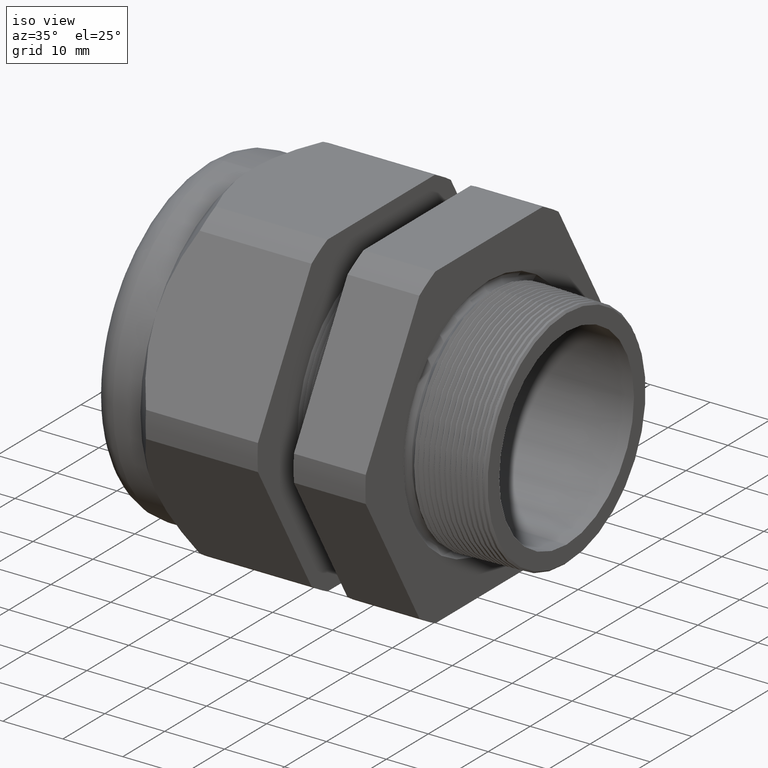
[diagram: clean part render]
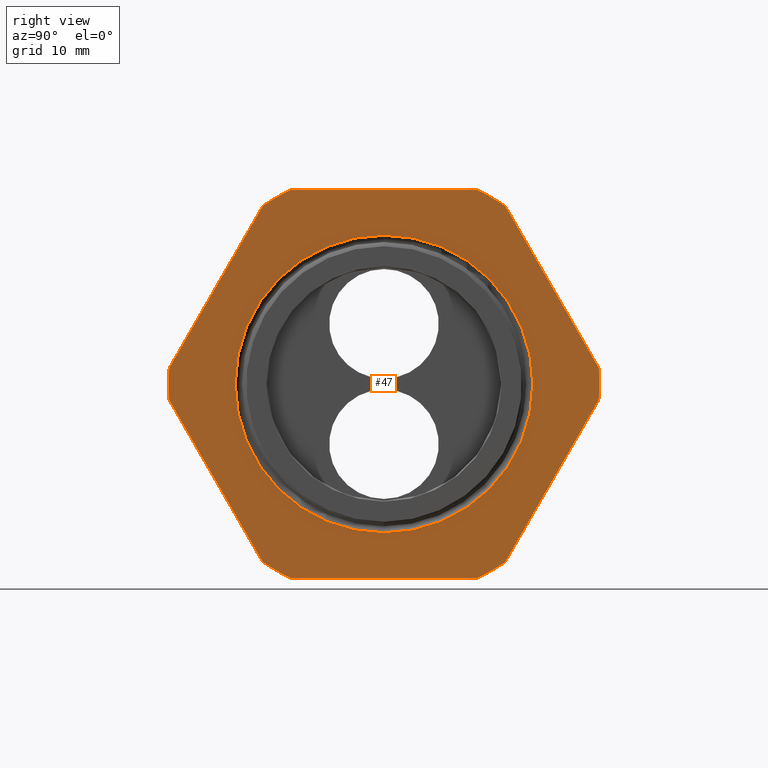
[diagram: tour spotlight — one face highlighted and labeled with its STEP entity id]
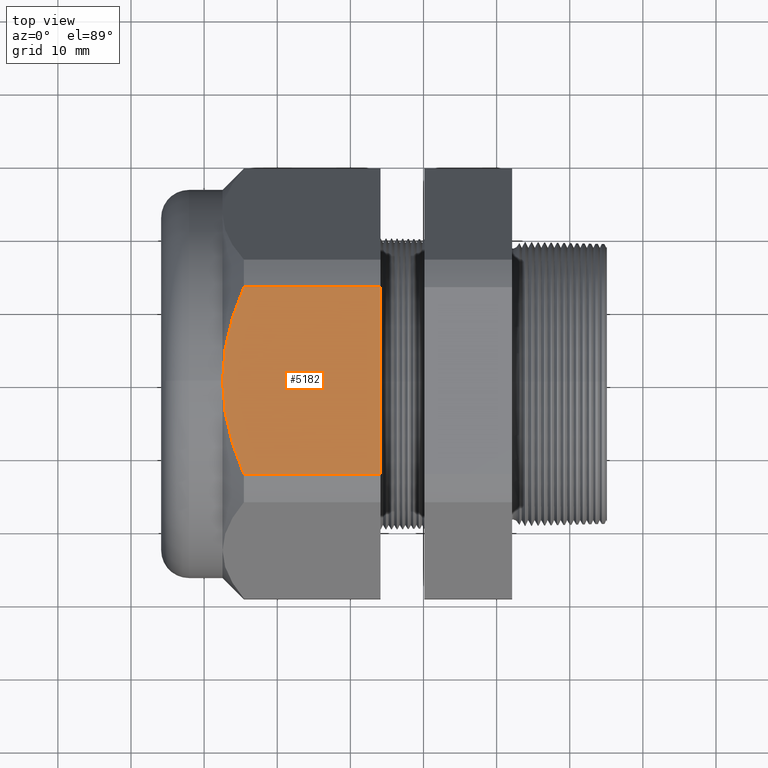
[diagram: tour spotlight — one face highlighted and labeled with its STEP entity id]
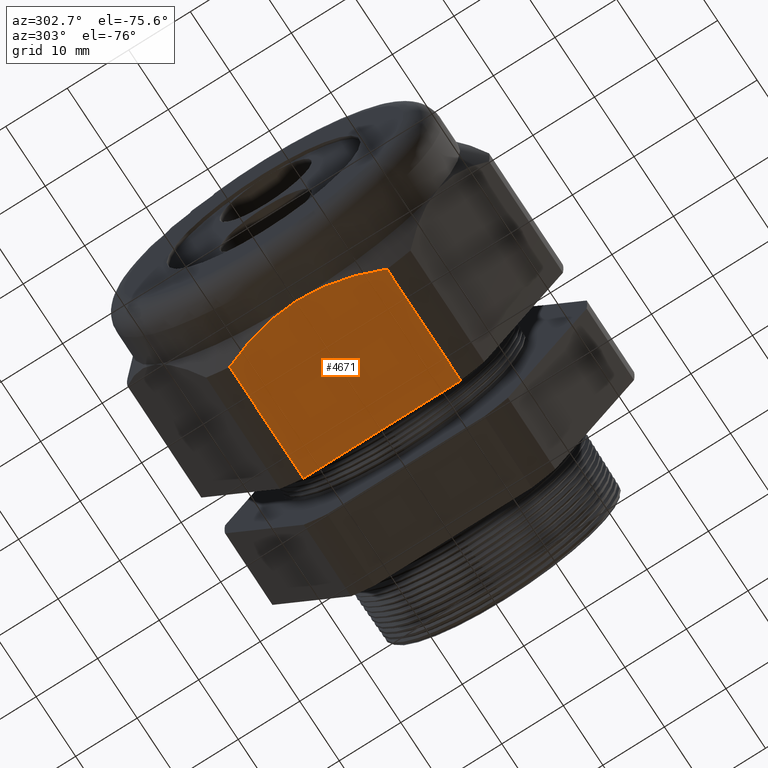
[diagram: tour spotlight — one face highlighted and labeled with its STEP entity id]
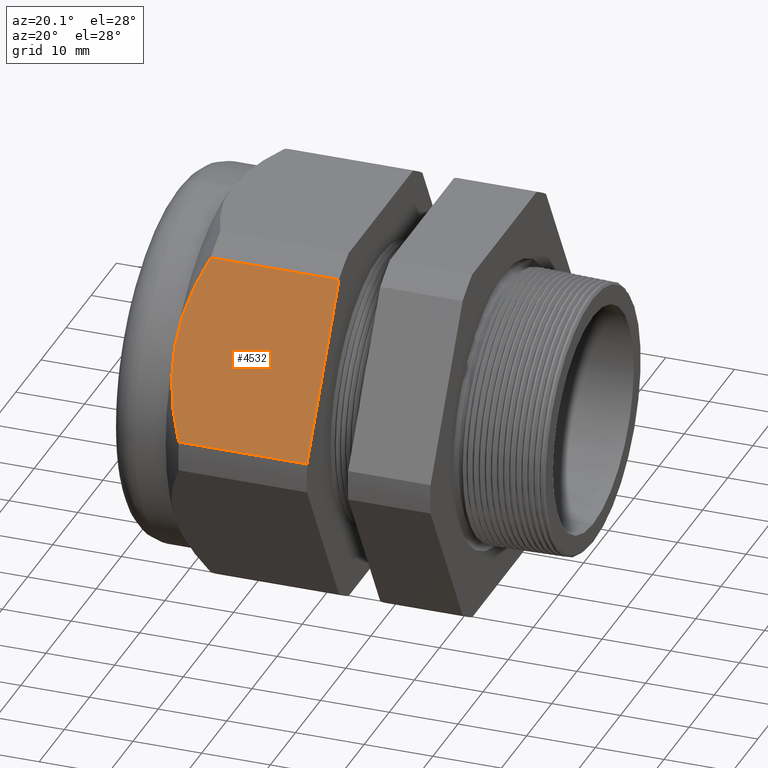
[diagram: tour spotlight — one face highlighted and labeled with its STEP entity id]
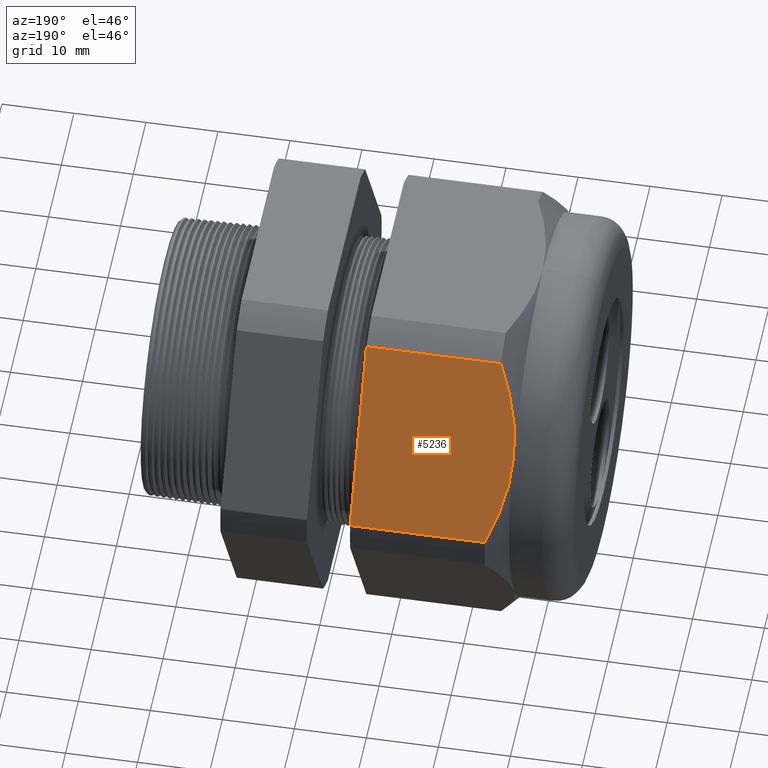
[diagram: tour spotlight — one face highlighted and labeled with its STEP entity id]
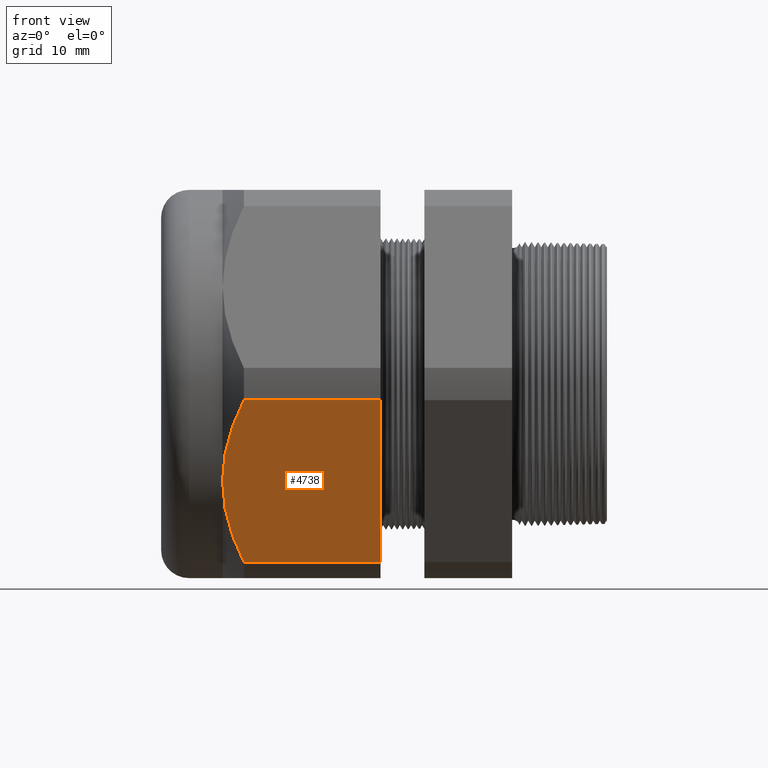
[diagram: tour spotlight — one face highlighted and labeled with its STEP entity id]
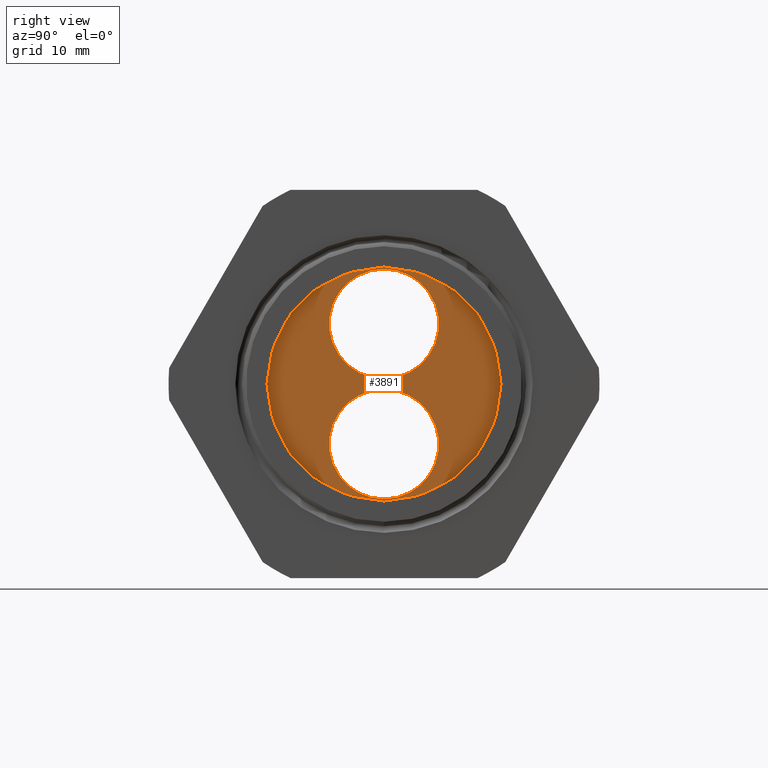
[diagram: tour spotlight — one face highlighted and labeled with its STEP entity id]
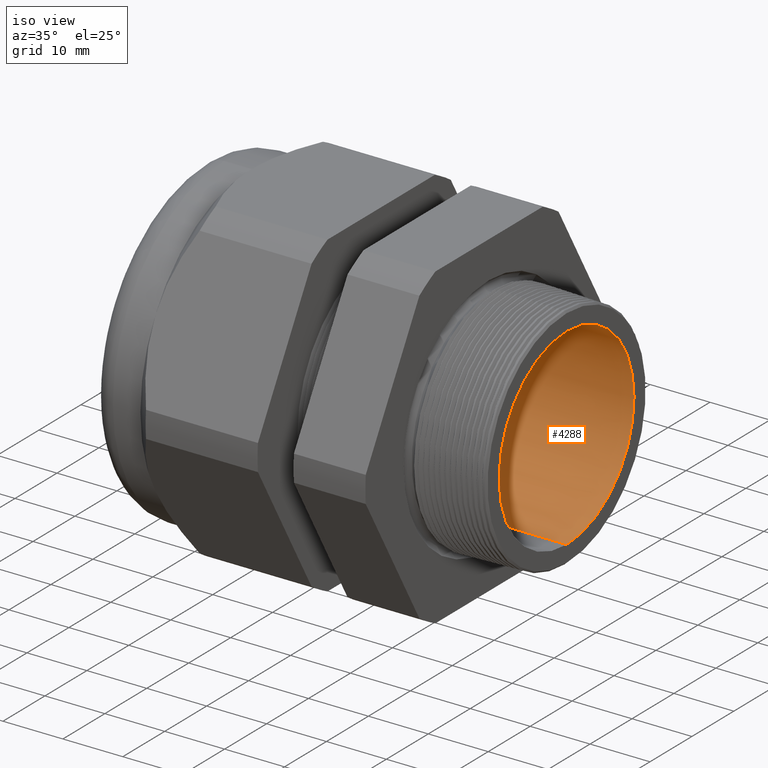
[diagram: tour spotlight — one face highlighted and labeled with its STEP entity id]
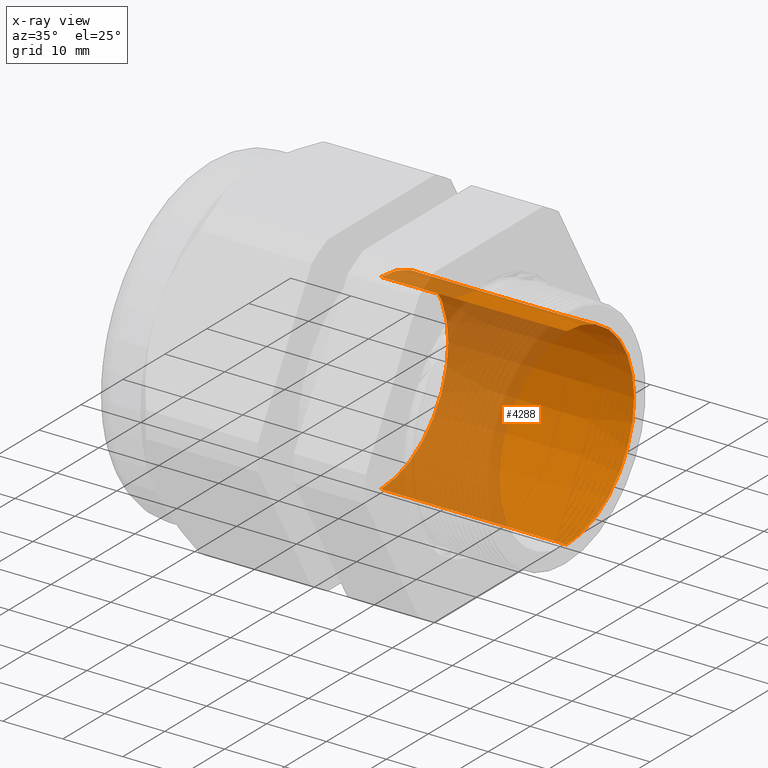
[diagram: x-ray of the same camera — body ghosted, this tour face saturated]
A machine part: a face-by-face anatomy tour. The part has 193 B-rep faces; the first image is the clean iso view, then the 8 largest visible faces are spotlighted one at a time (largest first), each with its STEP entity span.

Face 1 — right view, entity #47. In plain terms, the highlighted planar face has unit normal (1, 0, 0).
Definition (entity closure, byte-faithful):
#9 = ORIENTED_EDGE ( 'NONE', *, *, #12, .T. ) ;
#10 = VERTEX_POINT ( 'NONE', #316 ) ;
#12 = EDGE_CURVE ( 'NONE', #13, #10, #311, .T. ) ;
#13 = VERTEX_POINT ( 'NONE', #307 ) ;
#14 = EDGE_LOOP ( 'NONE', ( #9, #4822, #4802, #4793, #4881, #64, #4846, #4843, #4835, #4836, #4806, #3882 ) ) ;
#28 = ORIENTED_EDGE ( 'NONE', *, *, #4336, .F. ) ;
#36 = ORIENTED_EDGE ( 'NONE', *, *, #38, .F. ) ;
#38 = EDGE_CURVE ( 'NONE', #4329, #4334, #394, .T. ) ;
#43 = EDGE_LOOP ( 'NONE', ( #36, #28 ) ) ;
#47 = ADVANCED_FACE ( 'NONE', ( #387, #381 ), #380, .T. ) ;
#62 = VERTEX_POINT ( 'NONE', #407 ) ;
#64 = ORIENTED_EDGE ( 'NONE', *, *, #66, .T. ) ;
#66 = EDGE_CURVE ( 'NONE', #4882, #62, #399, .T. ) ;
#307 = CARTESIAN_POINT ( 'NONE',  ( -0.3100000000000000000, 0.6532729870224188700, -0.9584979952648864400 ) ) ;
#308 = DIRECTION ( 'NONE',  ( 0.0000000000000000000, 0.4999999999999998300, 0.8660254037844386000 ) ) ;
#309 = VECTOR ( 'NONE', #308, 39.37007874015748900 ) ;
#310 = CARTESIAN_POINT ( 'NONE',  ( -0.3100000000000000000, 1.427496546954737800, 0.3824965469547383900 ) ) ;
#311 = LINE ( 'NONE', #310, #309 ) ;
#316 = CARTESIAN_POINT ( 'NONE',  ( -0.3100000000000000000, 1.156720106887057600, -0.08650200473511303300 ) ) ;
#376 = DIRECTION ( 'NONE',  ( 0.0000000000000000000, 0.0000000000000000000, -1.000000000000000000 ) ) ;
#377 = DIRECTION ( 'NONE',  ( 1.000000000000000000, 0.0000000000000000000, 0.0000000000000000000 ) ) ;
#378 = CARTESIAN_POINT ( 'NONE',  ( -0.3100000000000000000, 2.089999999999999900, 0.0000000000000000000 ) ) ;
#379 = AXIS2_PLACEMENT_3D ( 'NONE', #378, #377, #376 ) ;
#380 = PLANE ( 'NONE',  #379 ) ;
#381 = FACE_OUTER_BOUND ( 'NONE', #14, .T. ) ;
#387 = FACE_BOUND ( 'NONE', #43, .T. ) ;
#390 = DIRECTION ( 'NONE',  ( 0.0000000000000000000, 0.0000000000000000000, -1.000000000000000000 ) ) ;
#391 = DIRECTION ( 'NONE',  ( 1.000000000000000000, 0.0000000000000000000, 0.0000000000000000000 ) ) ;
#392 = CARTESIAN_POINT ( 'NONE',  ( -0.3100000000000000000, 0.0000000000000000000, 0.0000000000000000000 ) ) ;
#393 = AXIS2_PLACEMENT_3D ( 'NONE', #392, #391, #390 ) ;
#394 = CIRCLE ( 'NONE', #393, 0.8010803616225625800 ) ;
#396 = DIRECTION ( 'NONE',  ( 0.0000000000000000000, 0.0000000000000000000, -1.000000000000000000 ) ) ;
#397 = DIRECTION ( 'NONE',  ( 1.000000000000000000, 0.0000000000000000000, 0.0000000000000000000 ) ) ;
#398 = AXIS2_PLACEMENT_3D ( 'NONE', #404, #397, #396 ) ;
#399 = CIRCLE ( 'NONE', #398, 1.159950000000000000 ) ;
#404 = CARTESIAN_POINT ( 'NONE',  ( -0.3100000000000000000, 0.0000000000000000000, 0.0000000000000000000 ) ) ;
#407 = CARTESIAN_POINT ( 'NONE',  ( -0.3100000000000000000, -0.6532729870224188700, 0.9584979952648866600 ) ) ;
#1100 = DIRECTION ( 'NONE',  ( 0.0000000000000000000, 1.000000000000000000, 0.0000000000000000000 ) ) ;
#1101 = VECTOR ( 'NONE', #1100, 39.37007874015748100 ) ;
#1102 = CARTESIAN_POINT ( 'NONE',  ( -0.3100000000000000000, 2.089999999999999900, -1.044999999999999900 ) ) ;
#1107 = LINE ( 'NONE', #1102, #1101 ) ;
#1112 = CARTESIAN_POINT ( 'NONE',  ( -0.3100000000000000000, 0.5034471198646389700, -1.044999999999999900 ) ) ;
#1113 = DIRECTION ( 'NONE',  ( 0.0000000000000000000, 0.0000000000000000000, -1.000000000000000000 ) ) ;
#1114 = DIRECTION ( 'NONE',  ( 1.000000000000000000, 0.0000000000000000000, 0.0000000000000000000 ) ) ;
#1115 = CARTESIAN_POINT ( 'NONE',  ( -0.3100000000000000000, 0.0000000000000000000, 0.0000000000000000000 ) ) ;
#1116 = AXIS2_PLACEMENT_3D ( 'NONE', #1115, #1114, #1113 ) ;
#1117 = CIRCLE ( 'NONE', #1116, 1.159950000000000000 ) ;
#1865 = CARTESIAN_POINT ( 'NONE',  ( -0.3100000000000000000, 0.0000000000000000000, -0.8010803616225625800 ) ) ;
#1917 = DIRECTION ( 'NONE',  ( 0.0000000000000000000, 0.0000000000000000000, -1.000000000000000000 ) ) ;
#1918 = DIRECTION ( 'NONE',  ( 1.000000000000000000, 0.0000000000000000000, 0.0000000000000000000 ) ) ;
#1919 = CARTESIAN_POINT ( 'NONE',  ( -0.3100000000000000000, 0.0000000000000000000, 0.0000000000000000000 ) ) ;
#1920 = AXIS2_PLACEMENT_3D ( 'NONE', #1919, #1918, #1917 ) ;
#1921 = CIRCLE ( 'NONE', #1920, 0.8010803616225625800 ) ;
#1922 = CARTESIAN_POINT ( 'NONE',  ( -0.3100000000000000000, 9.810405007208754400E-017, 0.8010803616225625800 ) ) ;
#2795 = CARTESIAN_POINT ( 'NONE',  ( -0.3100000000000000000, 1.156720106887057600, 0.08650200473511329700 ) ) ;
#2800 = CARTESIAN_POINT ( 'NONE',  ( -0.3100000000000000000, 0.6532729870224187600, 0.9584979952648866600 ) ) ;
#2828 = DIRECTION ( 'NONE',  ( 0.0000000000000000000, -0.4999999999999998900, 0.8660254037844386000 ) ) ;
#2829 = VECTOR ( 'NONE', #2828, 39.37007874015748900 ) ;
#2830 = CARTESIAN_POINT ( 'NONE',  ( -0.3100000000000000000, 1.427496546954738000, -0.3824965469547384500 ) ) ;
#2831 = LINE ( 'NONE', #2830, #2829 ) ;
#2853 = DIRECTION ( 'NONE',  ( 0.0000000000000000000, 0.0000000000000000000, -1.000000000000000000 ) ) ;
#2854 = DIRECTION ( 'NONE',  ( 1.000000000000000000, 0.0000000000000000000, 0.0000000000000000000 ) ) ;
#2855 = CARTESIAN_POINT ( 'NONE',  ( -0.3100000000000000000, 0.0000000000000000000, 0.0000000000000000000 ) ) ;
#2856 = AXIS2_PLACEMENT_3D ( 'NONE', #2855, #2854, #2853 ) ;
#2857 = CIRCLE ( 'NONE', #2856, 1.159950000000000000 ) ;
#2858 = DIRECTION ( 'NONE',  ( 0.0000000000000000000, 0.5000000000000001100, -0.8660254037844386000 ) ) ;
#2859 = VECTOR ( 'NONE', #2858, 39.37007874015748100 ) ;
#2860 = CARTESIAN_POINT ( 'NONE',  ( -0.3100000000000000000, -0.3824965469547378400, -1.427496546954738300 ) ) ;
#2861 = LINE ( 'NONE', #2860, #2859 ) ;
#2862 = CARTESIAN_POINT ( 'NONE',  ( -0.3100000000000000000, -1.156720106887057800, -0.08650200473511310300 ) ) ;
#2863 = CARTESIAN_POINT ( 'NONE',  ( -0.3100000000000000000, -0.6532729870224180900, -0.9584979952648871000 ) ) ;
#2864 = DIRECTION ( 'NONE',  ( 0.0000000000000000000, 0.0000000000000000000, -1.000000000000000000 ) ) ;
#2865 = DIRECTION ( 'NONE',  ( 1.000000000000000000, 0.0000000000000000000, 0.0000000000000000000 ) ) ;
#2866 = CARTESIAN_POINT ( 'NONE',  ( -0.3100000000000000000, 0.0000000000000000000, 0.0000000000000000000 ) ) ;
#2867 = AXIS2_PLACEMENT_3D ( 'NONE', #2866, #2865, #2864 ) ;
#2868 = CIRCLE ( 'NONE', #2867, 1.159950000000000000 ) ;
#2882 = DIRECTION ( 'NONE',  ( 0.0000000000000000000, 0.0000000000000000000, -1.000000000000000000 ) ) ;
#2883 = DIRECTION ( 'NONE',  ( 1.000000000000000000, 0.0000000000000000000, 0.0000000000000000000 ) ) ;
#2884 = CARTESIAN_POINT ( 'NONE',  ( -0.3100000000000000000, 0.0000000000000000000, 0.0000000000000000000 ) ) ;
#2885 = AXIS2_PLACEMENT_3D ( 'NONE', #2884, #2883, #2882 ) ;
#2886 = CIRCLE ( 'NONE', #2885, 1.159950000000000000 ) ;
#2887 = CARTESIAN_POINT ( 'NONE',  ( -0.3100000000000000000, -0.5034471198646389700, -1.044999999999999900 ) ) ;
#2896 = DIRECTION ( 'NONE',  ( 0.0000000000000000000, -0.4999999999999996100, -0.8660254037844388200 ) ) ;
#2897 = VECTOR ( 'NONE', #2896, 39.37007874015748900 ) ;
#2898 = CARTESIAN_POINT ( 'NONE',  ( -0.3100000000000000000, -0.3824965469547395000, 1.427496546954737600 ) ) ;
#2899 = LINE ( 'NONE', #2898, #2897 ) ;
#2901 = CARTESIAN_POINT ( 'NONE',  ( -0.3100000000000000000, -1.156720106887058100, 0.08650200473511256100 ) ) ;
#2908 = DIRECTION ( 'NONE',  ( 0.0000000000000000000, 0.0000000000000000000, -1.000000000000000000 ) ) ;
#2909 = DIRECTION ( 'NONE',  ( 1.000000000000000000, 0.0000000000000000000, 0.0000000000000000000 ) ) ;
#2910 = CARTESIAN_POINT ( 'NONE',  ( -0.3100000000000000000, 0.0000000000000000000, 0.0000000000000000000 ) ) ;
#2911 = AXIS2_PLACEMENT_3D ( 'NONE', #2910, #2909, #2908 ) ;
#2912 = CIRCLE ( 'NONE', #2911, 1.159950000000000000 ) ;
#2974 = DIRECTION ( 'NONE',  ( 0.0000000000000000000, -1.000000000000000000, 0.0000000000000000000 ) ) ;
#2975 = VECTOR ( 'NONE', #2974, 39.37007874015748100 ) ;
#2976 = CARTESIAN_POINT ( 'NONE',  ( -0.3100000000000000000, 2.089999999999999900, 1.044999999999999900 ) ) ;
#2977 = LINE ( 'NONE', #2976, #2975 ) ;
#2978 = CARTESIAN_POINT ( 'NONE',  ( -0.3100000000000000000, -0.5034471198646390800, 1.044999999999999900 ) ) ;
#2980 = CARTESIAN_POINT ( 'NONE',  ( -0.3100000000000000000, 0.5034471198646388600, 1.044999999999999900 ) ) ;
#3882 = ORIENTED_EDGE ( 'NONE', *, *, #3889, .T. ) ;
#3889 = EDGE_CURVE ( 'NONE', #3890, #13, #1117, .T. ) ;
#3890 = VERTEX_POINT ( 'NONE', #1112 ) ;
#3892 = EDGE_CURVE ( 'NONE', #4820, #3890, #1107, .T. ) ;
#4329 = VERTEX_POINT ( 'NONE', #1865 ) ;
#4334 = VERTEX_POINT ( 'NONE', #1922 ) ;
#4336 = EDGE_CURVE ( 'NONE', #4334, #4329, #1921, .T. ) ;
#4793 = ORIENTED_EDGE ( 'NONE', *, *, #4807, .T. ) ;
#4800 = VERTEX_POINT ( 'NONE', #2800 ) ;
#4802 = ORIENTED_EDGE ( 'NONE', *, *, #4816, .T. ) ;
#4805 = VERTEX_POINT ( 'NONE', #2795 ) ;
#4806 = ORIENTED_EDGE ( 'NONE', *, *, #3892, .T. ) ;
#4807 = EDGE_CURVE ( 'NONE', #4800, #4879, #2857, .T. ) ;
#4816 = EDGE_CURVE ( 'NONE', #4805, #4800, #2831, .T. ) ;
#4820 = VERTEX_POINT ( 'NONE', #2887 ) ;
#4821 = EDGE_CURVE ( 'NONE', #10, #4805, #2886, .T. ) ;
#4822 = ORIENTED_EDGE ( 'NONE', *, *, #4821, .T. ) ;
#4828 = EDGE_CURVE ( 'NONE', #4830, #4820, #2868, .T. ) ;
#4830 = VERTEX_POINT ( 'NONE', #2863 ) ;
#4831 = VERTEX_POINT ( 'NONE', #2862 ) ;
#4833 = EDGE_CURVE ( 'NONE', #4831, #4830, #2861, .T. ) ;
#4835 = ORIENTED_EDGE ( 'NONE', *, *, #4833, .T. ) ;
#4836 = ORIENTED_EDGE ( 'NONE', *, *, #4828, .T. ) ;
#4839 = EDGE_CURVE ( 'NONE', #4845, #4831, #2912, .T. ) ;
#4843 = ORIENTED_EDGE ( 'NONE', *, *, #4839, .T. ) ;
#4845 = VERTEX_POINT ( 'NONE', #2901 ) ;
#4846 = ORIENTED_EDGE ( 'NONE', *, *, #4847, .T. ) ;
#4847 = EDGE_CURVE ( 'NONE', #62, #4845, #2899, .T. ) ;
#4879 = VERTEX_POINT ( 'NONE', #2980 ) ;
#4881 = ORIENTED_EDGE ( 'NONE', *, *, #4883, .T. ) ;
#4882 = VERTEX_POINT ( 'NONE', #2978 ) ;
#4883 = EDGE_CURVE ( 'NONE', #4879, #4882, #2977, .T. ) ;

Face 2 — top view, entity #5182. In plain terms, the highlighted planar face has unit normal (0, 0, 1).
Definition (entity closure, byte-faithful):
#2162 = CARTESIAN_POINT ( 'NONE',  ( -1.869292000000000000, 0.0000000000000000000, 1.044999999999999900 ) ) ;
#3408 = LINE ( 'NONE', #3463, #3462 ) ;
#3409 = DIRECTION ( 'NONE',  ( -1.000000000000000000, 0.0000000000000000000, 0.0000000000000000000 ) ) ;
#3410 = VECTOR ( 'NONE', #3409, 39.37007874015748100 ) ;
#3411 = CARTESIAN_POINT ( 'NONE',  ( -1.754342000000000300, -0.5034471198646390800, 1.044999999999999900 ) ) ;
#3413 = CARTESIAN_POINT ( 'NONE',  ( -1.771541667379295600, -0.4638188185209407000, 1.044999999999999700 ) ) ;
#3414 = CARTESIAN_POINT ( 'NONE',  ( -1.787425944234740700, -0.4234483023531731000, 1.044999999999999900 ) ) ;
#3415 = CARTESIAN_POINT ( 'NONE',  ( -1.815810422140071700, -0.3407977905260944900, 1.044999999999999900 ) ) ;
#3416 = CARTESIAN_POINT ( 'NONE',  ( -1.828087416907578000, -0.2991342696643446400, 1.044999999999999700 ) ) ;
#3417 = CARTESIAN_POINT ( 'NONE',  ( -1.858213035920962100, -0.1730359448115064100, 1.044999999999999900 ) ) ;
#3418 = CARTESIAN_POINT ( 'NONE',  ( -1.869292000000000400, -0.08745202795108905600, 1.045000000000000200 ) ) ;
#3419 = CARTESIAN_POINT ( 'NONE',  ( -1.869292000000000000, 0.0000000000000000000, 1.044999999999999900 ) ) ;
#3420 = CARTESIAN_POINT ( 'NONE',  ( 0.2000000000000000400, -0.5034471198646390800, 1.044999999999999900 ) ) ;
#3421 = LINE ( 'NONE', #3420, #3410 ) ;
#3422 = B_SPLINE_CURVE_WITH_KNOTS ( 'NONE', 3,
 ( #3419, #3418, #3417, #3416, #3415, #3414, #3413, #3411 ),
 .UNSPECIFIED., .F., .F.,
 ( 4, 2, 2, 4 ),
 ( 0.03346784229927659400, 0.04001292135983693800, 0.04328546089011711700, 0.04655800042039728900 ),
 .UNSPECIFIED. ) ;
#3423 = CARTESIAN_POINT ( 'NONE',  ( -1.018802799999999800, 0.5034471198646388600, 1.044999999999999900 ) ) ;
#3429 = CARTESIAN_POINT ( 'NONE',  ( -1.754342000000000300, 0.5034471198646388600, 1.044999999999999900 ) ) ;
#3430 = CARTESIAN_POINT ( 'NONE',  ( -1.754342000000000300, -0.5034471198646390800, 1.044999999999999900 ) ) ;
#3431 = CARTESIAN_POINT ( 'NONE',  ( -1.018802799999999800, -0.5034471198646390800, 1.044999999999999900 ) ) ;
#3433 = FACE_OUTER_BOUND ( 'NONE', #5184, .T. ) ;
#3461 = DIRECTION ( 'NONE',  ( -1.000000000000000000, 0.0000000000000000000, 0.0000000000000000000 ) ) ;
#3462 = VECTOR ( 'NONE', #3461, 39.37007874015748100 ) ;
#3463 = CARTESIAN_POINT ( 'NONE',  ( 0.2000000000000000400, 0.5034471198646388600, 1.044999999999999900 ) ) ;
#3464 = CARTESIAN_POINT ( 'NONE',  ( -1.762942910033211200, 0.4836304892804658100, 1.044999999999999700 ) ) ;
#3465 = CARTESIAN_POINT ( 'NONE',  ( -1.754342000000000300, 0.5034471198646388600, 1.044999999999999900 ) ) ;
#3469 = B_SPLINE_CURVE_WITH_KNOTS ( 'NONE', 3,
 ( #3465, #3464, #3530, #3529, #3528, #3527, #3526, #3525, #3524, #3523, #3522, #3521, #3520, #3519 ),
 .UNSPECIFIED., .F., .F.,
 ( 4, 2, 2, 2, 2, 2, 4 ),
 ( 0.02039820435195582200, 0.02203190909537092200, 0.02366561383878601800, 0.02693302332561621100, 0.03020043281244640500, 0.03183413755586150100, 0.03346784229927659400 ),
 .UNSPECIFIED. ) ;
#3487 = DIRECTION ( 'NONE',  ( 1.000000000000000000, 0.0000000000000000000, 0.0000000000000000000 ) ) ;
#3488 = DIRECTION ( 'NONE',  ( 0.0000000000000000000, 0.0000000000000000000, 1.000000000000000000 ) ) ;
#3489 = CARTESIAN_POINT ( 'NONE',  ( 0.2000000000000000400, -0.5034471198646388600, 1.044999999999999900 ) ) ;
#3490 = AXIS2_PLACEMENT_3D ( 'NONE', #3489, #3488, #3487 ) ;
#3491 = PLANE ( 'NONE',  #3490 ) ;
#3519 = CARTESIAN_POINT ( 'NONE',  ( -1.869292000000000000, 0.0000000000000000000, 1.044999999999999900 ) ) ;
#3520 = CARTESIAN_POINT ( 'NONE',  ( -1.869292000000000400, 0.02182873446798830700, 1.044999999999999700 ) ) ;
#3521 = CARTESIAN_POINT ( 'NONE',  ( -1.868601348862169300, 0.04373691554683262900, 1.045000000000000200 ) ) ;
#3522 = CARTESIAN_POINT ( 'NONE',  ( -1.865889267300422800, 0.08713363206265284400, 1.044999999999999900 ) ) ;
#3523 = CARTESIAN_POINT ( 'NONE',  ( -1.863869075271275900, 0.1087024430698536000, 1.044999999999999900 ) ) ;
#3524 = CARTESIAN_POINT ( 'NONE',  ( -1.855917652805893800, 0.1730400535522952600, 1.045000000000000200 ) ) ;
#3525 = CARTESIAN_POINT ( 'NONE',  ( -1.848093749831173100, 0.2154396742832504500, 1.044999999999999900 ) ) ;
#3526 = CARTESIAN_POINT ( 'NONE',  ( -1.828018536546963200, 0.2993753196147929100, 1.044999999999999700 ) ) ;
#3527 = CARTESIAN_POINT ( 'NONE',  ( -1.815769846189894800, 0.3409118552550474100, 1.044999999999999700 ) ) ;
#3528 = CARTESIAN_POINT ( 'NONE',  ( -1.794564483841140500, 0.4026641939678179400, 1.045000000000000200 ) ) ;
#3529 = CARTESIAN_POINT ( 'NONE',  ( -1.787018621072151000, 0.4231631440832458500, 1.045000000000000200 ) ) ;
#3530 = CARTESIAN_POINT ( 'NONE',  ( -1.771216119577155400, 0.4636207977166989000, 1.044999999999999900 ) ) ;
#3597 = VECTOR ( 'NONE', #3643, 39.37007874015748100 ) ;
#3598 = CARTESIAN_POINT ( 'NONE',  ( -1.018802799999999800, 0.7850000000000001400, 1.044999999999999900 ) ) ;
#3599 = LINE ( 'NONE', #3598, #3597 ) ;
#3643 = DIRECTION ( 'NONE',  ( 0.0000000000000000000, -1.000000000000000000, 0.0000000000000000000 ) ) ;
#4465 = VERTEX_POINT ( 'NONE', #2162 ) ;
#5146 = ORIENTED_EDGE ( 'NONE', *, *, #5192, .T. ) ;
#5147 = VERTEX_POINT ( 'NONE', #3431 ) ;
#5149 = VERTEX_POINT ( 'NONE', #3430 ) ;
#5150 = VERTEX_POINT ( 'NONE', #3429 ) ;
#5159 = VERTEX_POINT ( 'NONE', #3423 ) ;
#5165 = ORIENTED_EDGE ( 'NONE', *, *, #5166, .T. ) ;
#5166 = EDGE_CURVE ( 'NONE', #4465, #5149, #3422, .T. ) ;
#5168 = EDGE_CURVE ( 'NONE', #5147, #5149, #3421, .T. ) ;
#5171 = ORIENTED_EDGE ( 'NONE', *, *, #5173, .T. ) ;
#5173 = EDGE_CURVE ( 'NONE', #5159, #5150, #3408, .T. ) ;
#5182 = ADVANCED_FACE ( 'NONE', ( #3433 ), #3491, .T. ) ;
#5184 = EDGE_LOOP ( 'NONE', ( #5171, #5146, #5165, #5189, #5188 ) ) ;
#5188 = ORIENTED_EDGE ( 'NONE', *, *, #5248, .F. ) ;
#5189 = ORIENTED_EDGE ( 'NONE', *, *, #5168, .F. ) ;
#5192 = EDGE_CURVE ( 'NONE', #5150, #4465, #3469, .T. ) ;
#5248 = EDGE_CURVE ( 'NONE', #5159, #5147, #3599, .T. ) ;

Face 3 — auxiliary view, entity #4671. In plain terms, the highlighted planar face has unit normal (0, 0, -1).
Definition (entity closure, byte-faithful):
#2116 = CARTESIAN_POINT ( 'NONE',  ( -1.869292000000000000, 0.0000000000000000000, -1.044999999999999900 ) ) ;
#2544 = DIRECTION ( 'NONE',  ( -1.000000000000000000, 0.0000000000000000000, 0.0000000000000000000 ) ) ;
#2545 = DIRECTION ( 'NONE',  ( 0.0000000000000000000, 0.0000000000000000000, -1.000000000000000000 ) ) ;
#2546 = CARTESIAN_POINT ( 'NONE',  ( 0.2000000000000000400, 0.5034471198646389700, -1.044999999999999900 ) ) ;
#2547 = AXIS2_PLACEMENT_3D ( 'NONE', #2546, #2545, #2544 ) ;
#2548 = PLANE ( 'NONE',  #2547 ) ;
#2549 = FACE_OUTER_BOUND ( 'NONE', #4670, .T. ) ;
#2564 = CARTESIAN_POINT ( 'NONE',  ( -1.018802799999999800, -0.5034471198646389700, -1.044999999999999900 ) ) ;
#2569 = LINE ( 'NONE', #2628, #2627 ) ;
#2570 = CARTESIAN_POINT ( 'NONE',  ( -1.018802799999999800, 0.5034471198646389700, -1.044999999999999900 ) ) ;
#2583 = CARTESIAN_POINT ( 'NONE',  ( -1.754342000000000300, 0.5034471198646389700, -1.044999999999999900 ) ) ;
#2622 = DIRECTION ( 'NONE',  ( 0.0000000000000000000, 1.000000000000000000, 0.0000000000000000000 ) ) ;
#2623 = VECTOR ( 'NONE', #2622, 39.37007874015748100 ) ;
#2624 = CARTESIAN_POINT ( 'NONE',  ( -1.018802799999999800, 0.7850000000000001400, -1.044999999999999900 ) ) ;
#2625 = LINE ( 'NONE', #2624, #2623 ) ;
#2626 = DIRECTION ( 'NONE',  ( -1.000000000000000000, 0.0000000000000000000, 0.0000000000000000000 ) ) ;
#2627 = VECTOR ( 'NONE', #2626, 39.37007874015748100 ) ;
#2628 = CARTESIAN_POINT ( 'NONE',  ( 0.2000000000000000400, 0.5034471198646389700, -1.044999999999999900 ) ) ;
#2629 = CARTESIAN_POINT ( 'NONE',  ( -1.828087416907578500, -0.2991342696643443700, -1.044999999999999900 ) ) ;
#2630 = CARTESIAN_POINT ( 'NONE',  ( -1.815810422140071900, -0.3407977905260944900, -1.045000000000000200 ) ) ;
#2631 = CARTESIAN_POINT ( 'NONE',  ( -1.787425944234740200, -0.4234483023531728200, -1.044999999999999900 ) ) ;
#2632 = CARTESIAN_POINT ( 'NONE',  ( -1.771541667379295000, -0.4638188185209403700, -1.044999999999999700 ) ) ;
#2633 = CARTESIAN_POINT ( 'NONE',  ( -1.754342000000000300, -0.5034471198646389700, -1.044999999999999900 ) ) ;
#2634 = LINE ( 'NONE', #2690, #2689 ) ;
#2636 = B_SPLINE_CURVE_WITH_KNOTS ( 'NONE', 3,
 ( #2633, #2632, #2631, #2630, #2629, #2693, #2692, #2691 ),
 .UNSPECIFIED., .F., .F.,
 ( 4, 2, 2, 4 ),
 ( 0.01778252618355635100, 0.02105649278474032100, 0.02433045938592429500, 0.03087839258829223200 ),
 .UNSPECIFIED. ) ;
#2640 = CARTESIAN_POINT ( 'NONE',  ( -1.754342000000000300, 0.5034471198646389700, -1.044999999999999900 ) ) ;
#2641 = CARTESIAN_POINT ( 'NONE',  ( -1.762942910033211900, 0.4836304892804660900, -1.045000000000000200 ) ) ;
#2642 = CARTESIAN_POINT ( 'NONE',  ( -1.771216119577155400, 0.4636207977166991200, -1.045000000000000400 ) ) ;
#2643 = CARTESIAN_POINT ( 'NONE',  ( -1.787018621072150100, 0.4231631440832459000, -1.044999999999999700 ) ) ;
#2644 = CARTESIAN_POINT ( 'NONE',  ( -1.794564483841140800, 0.4026641939678180000, -1.045000000000000200 ) ) ;
#2645 = CARTESIAN_POINT ( 'NONE',  ( -1.815769846189895200, 0.3409118552550475200, -1.044999999999999900 ) ) ;
#2646 = CARTESIAN_POINT ( 'NONE',  ( -1.828018536546964100, 0.2993753196147930800, -1.044999999999999900 ) ) ;
#2647 = CARTESIAN_POINT ( 'NONE',  ( -1.848093749831173400, 0.2154396742832506400, -1.044999999999999900 ) ) ;
#2648 = CARTESIAN_POINT ( 'NONE',  ( -1.855917652805893600, 0.1730400535522952100, -1.044999999999999700 ) ) ;
#2649 = CARTESIAN_POINT ( 'NONE',  ( -1.863869075271275700, 0.1087024430698535800, -1.044999999999999900 ) ) ;
#2650 = CARTESIAN_POINT ( 'NONE',  ( -1.865889267300423500, 0.08713363206265267700, -1.045000000000000200 ) ) ;
#2651 = CARTESIAN_POINT ( 'NONE',  ( -1.868601348862169100, 0.04373691554683246900, -1.044999999999999900 ) ) ;
#2652 = CARTESIAN_POINT ( 'NONE',  ( -1.869292000000000000, 0.02182873446798836200, -1.044999999999999700 ) ) ;
#2653 = CARTESIAN_POINT ( 'NONE',  ( -1.869292000000000000, 0.0000000000000000000, -1.044999999999999900 ) ) ;
#2657 = B_SPLINE_CURVE_WITH_KNOTS ( 'NONE', 3,
 ( #2653, #2652, #2651, #2650, #2649, #2648, #2647, #2646, #2645, #2644, #2643, #2642, #2641, #2640 ),
 .UNSPECIFIED., .F., .F.,
 ( 4, 2, 2, 2, 2, 2, 4 ),
 ( 0.03087839258829223200, 0.03251280974861876800, 0.03414722690894530400, 0.03741606122959838200, 0.04068489555025145400, 0.04231931271057799000, 0.04395372987090452600 ),
 .UNSPECIFIED. ) ;
#2682 = CARTESIAN_POINT ( 'NONE',  ( -1.754342000000000300, -0.5034471198646389700, -1.044999999999999900 ) ) ;
#2688 = DIRECTION ( 'NONE',  ( -1.000000000000000000, 0.0000000000000000000, 0.0000000000000000000 ) ) ;
#2689 = VECTOR ( 'NONE', #2688, 39.37007874015748100 ) ;
#2690 = CARTESIAN_POINT ( 'NONE',  ( 0.2000000000000000400, -0.5034471198646389700, -1.044999999999999900 ) ) ;
#2691 = CARTESIAN_POINT ( 'NONE',  ( -1.869292000000000000, 0.0000000000000000000, -1.044999999999999900 ) ) ;
#2692 = CARTESIAN_POINT ( 'NONE',  ( -1.869292000000000200, -0.08745202795108886200, -1.044999999999999700 ) ) ;
#2693 = CARTESIAN_POINT ( 'NONE',  ( -1.858213035920961900, -0.1730359448115060800, -1.044999999999999700 ) ) ;
#4454 = VERTEX_POINT ( 'NONE', #2116 ) ;
#4668 = VERTEX_POINT ( 'NONE', #2564 ) ;
#4670 = EDGE_LOOP ( 'NONE', ( #4724, #4718, #4714, #4711, #4712 ) ) ;
#4671 = ADVANCED_FACE ( 'NONE', ( #2549 ), #2548, .T. ) ;
#4686 = VERTEX_POINT ( 'NONE', #2583 ) ;
#4693 = VERTEX_POINT ( 'NONE', #2570 ) ;
#4697 = EDGE_CURVE ( 'NONE', #4693, #4686, #2569, .T. ) ;
#4699 = EDGE_CURVE ( 'NONE', #4668, #4693, #2625, .T. ) ;
#4711 = ORIENTED_EDGE ( 'NONE', *, *, #4697, .F. ) ;
#4712 = ORIENTED_EDGE ( 'NONE', *, *, #4699, .F. ) ;
#4714 = ORIENTED_EDGE ( 'NONE', *, *, #4715, .T. ) ;
#4715 = EDGE_CURVE ( 'NONE', #4454, #4686, #2657, .T. ) ;
#4718 = ORIENTED_EDGE ( 'NONE', *, *, #4719, .T. ) ;
#4719 = EDGE_CURVE ( 'NONE', #4732, #4454, #2636, .T. ) ;
#4723 = EDGE_CURVE ( 'NONE', #4668, #4732, #2634, .T. ) ;
#4724 = ORIENTED_EDGE ( 'NONE', *, *, #4723, .T. ) ;
#4732 = VERTEX_POINT ( 'NONE', #2682 ) ;

Face 4 — auxiliary view, entity #4532. In plain terms, the highlighted planar face has unit normal (0, -0.866, 0.5).
Definition (entity closure, byte-faithful):
#2055 = CARTESIAN_POINT ( 'NONE',  ( -1.869292000000000000, -0.9049965469547386300, 0.5224999999999996300 ) ) ;
#2071 = CARTESIAN_POINT ( 'NONE',  ( -1.754342000000000300, -1.156720106887057800, 0.08650200473511252000 ) ) ;
#2072 = CARTESIAN_POINT ( 'NONE',  ( -1.771743928187930100, -1.136672950189631100, 0.1212246986823501300 ) ) ;
#2073 = CARTESIAN_POINT ( 'NONE',  ( -1.787722809093209100, -1.116325425824559800, 0.1564676446908996300 ) ) ;
#2074 = CARTESIAN_POINT ( 'NONE',  ( -1.816049984818948400, -1.075009018692886200, 0.2280297610291591200 ) ) ;
#2075 = CARTESIAN_POINT ( 'NONE',  ( -1.828286401335962800, -1.054198518062447800, 0.2640746054520222700 ) ) ;
#2076 = CARTESIAN_POINT ( 'NONE',  ( -1.858295772310753800, -0.9912375501002805800, 0.3731262008562124500 ) ) ;
#2077 = CARTESIAN_POINT ( 'NONE',  ( -1.869292000000000800, -0.9485515436756352100, 0.4470605327559100700 ) ) ;
#2078 = CARTESIAN_POINT ( 'NONE',  ( -1.869292000000000000, -0.9049965469547386300, 0.5224999999999996300 ) ) ;
#2080 = B_SPLINE_CURVE_WITH_KNOTS ( 'NONE', 3,
 ( #2078, #2077, #2076, #2075, #2074, #2073, #2072, #2071 ),
 .UNSPECIFIED., .F., .F.,
 ( 4, 2, 2, 4 ),
 ( 0.01312468964301425000, 0.01968241065928899900, 0.02296127116742637000, 0.02624013167556374400 ),
 .UNSPECIFIED. ) ;
#2086 = CARTESIAN_POINT ( 'NONE',  ( -1.018802799999999800, -0.6532729870224188700, 0.9584979952648866600 ) ) ;
#2087 = CARTESIAN_POINT ( 'NONE',  ( -1.754342000000000300, -0.6532729870224187600, 0.9584979952648864400 ) ) ;
#2088 = CARTESIAN_POINT ( 'NONE',  ( -1.869292000000000000, -0.9049965469547386300, 0.5224999999999996300 ) ) ;
#2089 = CARTESIAN_POINT ( 'NONE',  ( -1.869292000000000400, -0.8941003263552938000, 0.5413728076887161000 ) ) ;
#2090 = CARTESIAN_POINT ( 'NONE',  ( -1.868602443834755700, -0.8831044440390649600, 0.5604182345344735900 ) ) ;
#2091 = CARTESIAN_POINT ( 'NONE',  ( -1.865863667396531200, -0.8612576128887807800, 0.5982580560711432400 ) ) ;
#2092 = CARTESIAN_POINT ( 'NONE',  ( -1.863823402605176500, -0.8504177933294219100, 0.6170331742928315500 ) ) ;
#2093 = CARTESIAN_POINT ( 'NONE',  ( -1.855811452808128000, -0.8181339861334947500, 0.6729503686179362200 ) ) ;
#2094 = CARTESIAN_POINT ( 'NONE',  ( -1.847948022855568300, -0.7969257234379633100, 0.7096841571468635000 ) ) ;
#2095 = CARTESIAN_POINT ( 'NONE',  ( -1.817835050397151200, -0.7341137082222669600, 0.8184777588262391900 ) ) ;
#2096 = CARTESIAN_POINT ( 'NONE',  ( -1.789102837835438100, -0.6933177427239284300, 0.8891384438131889600 ) ) ;
#2097 = CARTESIAN_POINT ( 'NONE',  ( -1.754342000000000300, -0.6532729870224187600, 0.9584979952648864400 ) ) ;
#2102 = B_SPLINE_CURVE_WITH_KNOTS ( 'NONE', 3,
 ( #2097, #2096, #2095, #2094, #2093, #2092, #2091, #2090, #2089, #2088 ),
 .UNSPECIFIED., .F., .F.,
 ( 4, 2, 2, 2, 4 ),
 ( 2.483246824854965000E-007, 0.006562468983848370100, 0.009843579313431312000, 0.01148413447822278100, 0.01312468964301425000 ),
 .UNSPECIFIED. ) ;
#2137 = DIRECTION ( 'NONE',  ( -1.000000000000000000, 0.0000000000000000000, 0.0000000000000000000 ) ) ;
#2138 = VECTOR ( 'NONE', #2137, 39.37007874015748100 ) ;
#2139 = CARTESIAN_POINT ( 'NONE',  ( 0.2000000000000000400, -0.6532729870224188700, 0.9584979952648866600 ) ) ;
#2140 = LINE ( 'NONE', #2139, #2138 ) ;
#2274 = DIRECTION ( 'NONE',  ( 0.0000000000000000000, -0.4999999999999996100, -0.8660254037844388200 ) ) ;
#2275 = DIRECTION ( 'NONE',  ( 0.0000000000000000000, -0.8660254037844388200, 0.4999999999999996100 ) ) ;
#2276 = CARTESIAN_POINT ( 'NONE',  ( 0.2000000000000000400, -1.156720106887057800, 0.08650200473511263100 ) ) ;
#2277 = AXIS2_PLACEMENT_3D ( 'NONE', #2276, #2275, #2274 ) ;
#2279 = PLANE ( 'NONE',  #2277 ) ;
#2280 = FACE_OUTER_BOUND ( 'NONE', #4449, .T. ) ;
#2712 = CARTESIAN_POINT ( 'NONE',  ( -1.754342000000000300, -1.156720106887057800, 0.08650200473511252000 ) ) ;
#2713 = CARTESIAN_POINT ( 'NONE',  ( -1.018802799999999800, -1.156720106887058100, 0.08650200473511256100 ) ) ;
#2714 = DIRECTION ( 'NONE',  ( -1.000000000000000000, 0.0000000000000000000, 0.0000000000000000000 ) ) ;
#2715 = VECTOR ( 'NONE', #2714, 39.37007874015748100 ) ;
#2716 = CARTESIAN_POINT ( 'NONE',  ( 0.2000000000000000400, -1.156720106887058100, 0.08650200473511256100 ) ) ;
#2717 = LINE ( 'NONE', #2716, #2715 ) ;
#3434 = DIRECTION ( 'NONE',  ( 0.0000000000000000000, -0.4999999999999996100, -0.8660254037844388200 ) ) ;
#3435 = VECTOR ( 'NONE', #3434, 39.37007874015748900 ) ;
#3436 = CARTESIAN_POINT ( 'NONE',  ( -1.018802799999999800, -0.7087465469547383800, 0.8624149709853914400 ) ) ;
#3437 = LINE ( 'NONE', #3436, #3435 ) ;
#4413 = EDGE_CURVE ( 'NONE', #4422, #4754, #2080, .T. ) ;
#4416 = ORIENTED_EDGE ( 'NONE', *, *, #4413, .T. ) ;
#4422 = VERTEX_POINT ( 'NONE', #2055 ) ;
#4428 = EDGE_CURVE ( 'NONE', #4431, #4422, #2102, .T. ) ;
#4431 = VERTEX_POINT ( 'NONE', #2087 ) ;
#4432 = ORIENTED_EDGE ( 'NONE', *, *, #4428, .T. ) ;
#4433 = VERTEX_POINT ( 'NONE', #2086 ) ;
#4438 = EDGE_CURVE ( 'NONE', #4433, #4431, #2140, .T. ) ;
#4439 = ORIENTED_EDGE ( 'NONE', *, *, #4438, .T. ) ;
#4449 = EDGE_LOOP ( 'NONE', ( #4439, #4432, #4416, #5186, #5178 ) ) ;
#4532 = ADVANCED_FACE ( 'NONE', ( #2280 ), #2279, .T. ) ;
#4746 = EDGE_CURVE ( 'NONE', #4750, #4754, #2717, .T. ) ;
#4750 = VERTEX_POINT ( 'NONE', #2713 ) ;
#4754 = VERTEX_POINT ( 'NONE', #2712 ) ;
#5178 = ORIENTED_EDGE ( 'NONE', *, *, #5181, .F. ) ;
#5181 = EDGE_CURVE ( 'NONE', #4433, #4750, #3437, .T. ) ;
#5186 = ORIENTED_EDGE ( 'NONE', *, *, #4746, .F. ) ;

Face 5 — auxiliary view, entity #5236. In plain terms, the highlighted planar face has unit normal (0, 0.866, 0.5).
Definition (entity closure, byte-faithful):
#4 = EDGE_CURVE ( 'NONE', #5247, #4462, #282, .T. ) ;
#5 = EDGE_CURVE ( 'NONE', #5191, #5247, #281, .T. ) ;
#17 = ORIENTED_EDGE ( 'NONE', *, *, #19, .F. ) ;
#19 = EDGE_CURVE ( 'NONE', #5191, #5243, #305, .T. ) ;
#22 = ORIENTED_EDGE ( 'NONE', *, *, #5244, .F. ) ;
#23 = EDGE_CURVE ( 'NONE', #4462, #5240, #360, .T. ) ;
#68 = ORIENTED_EDGE ( 'NONE', *, *, #23, .T. ) ;
#271 = CARTESIAN_POINT ( 'NONE',  ( -1.865863667396531600, 0.9487354810206960500, 0.4467419439288563600 ) ) ;
#272 = CARTESIAN_POINT ( 'NONE',  ( -1.863823402605176300, 0.9595753005800545800, 0.4279668257071680400 ) ) ;
#273 = CARTESIAN_POINT ( 'NONE',  ( -1.855811452808128200, 0.9918591077759824100, 0.3720496313820638700 ) ) ;
#274 = CARTESIAN_POINT ( 'NONE',  ( -1.847948022855568000, 1.013067370471512700, 0.3353158428531361500 ) ) ;
#275 = CARTESIAN_POINT ( 'NONE',  ( -1.817835050397151000, 1.075879385687209500, 0.2265222411737605700 ) ) ;
#276 = CARTESIAN_POINT ( 'NONE',  ( -1.789102837835438600, 1.116675351185548500, 0.1558615561868109700 ) ) ;
#277 = CARTESIAN_POINT ( 'NONE',  ( -1.754342000000000300, 1.156720106887057600, 0.08650200473511329700 ) ) ;
#278 = DIRECTION ( 'NONE',  ( -1.000000000000000000, 0.0000000000000000000, 0.0000000000000000000 ) ) ;
#279 = VECTOR ( 'NONE', #278, 39.37007874015748100 ) ;
#280 = CARTESIAN_POINT ( 'NONE',  ( 0.2000000000000000400, 1.156720106887057600, 0.08650200473511329700 ) ) ;
#281 = LINE ( 'NONE', #280, #279 ) ;
#282 = B_SPLINE_CURVE_WITH_KNOTS ( 'NONE', 3,
 ( #277, #276, #275, #274, #273, #272, #271, #331, #330, #329 ),
 .UNSPECIFIED., .F., .F.,
 ( 4, 2, 2, 2, 4 ),
 ( 2.483246824836743700E-007, 0.006562468983848361400, 0.009843579313431301600, 0.01148413447822277000, 0.01312468964301423600 ),
 .UNSPECIFIED. ) ;
#302 = DIRECTION ( 'NONE',  ( 0.0000000000000000000, -0.4999999999999998900, 0.8660254037844386000 ) ) ;
#303 = VECTOR ( 'NONE', #302, 39.37007874015748900 ) ;
#304 = CARTESIAN_POINT ( 'NONE',  ( -1.018802799999999800, 1.101246546954738100, 0.1825850290146076600 ) ) ;
#305 = LINE ( 'NONE', #304, #303 ) ;
#329 = CARTESIAN_POINT ( 'NONE',  ( -1.869292000000000000, 0.9049965469547380800, 0.5224999999999996300 ) ) ;
#330 = CARTESIAN_POINT ( 'NONE',  ( -1.869292000000000200, 0.9158927675541824700, 0.5036271923112831700 ) ) ;
#331 = CARTESIAN_POINT ( 'NONE',  ( -1.868602443834754800, 0.9268886498704120800, 0.4845817654655257800 ) ) ;
#351 = CARTESIAN_POINT ( 'NONE',  ( -1.754342000000000300, 0.6532729870224187600, 0.9584979952648866600 ) ) ;
#352 = CARTESIAN_POINT ( 'NONE',  ( -1.771743928187930100, 0.6733201437198451700, 0.9237753013176488400 ) ) ;
#353 = CARTESIAN_POINT ( 'NONE',  ( -1.787722809093209100, 0.6936676680849165300, 0.8885323553090992400 ) ) ;
#354 = CARTESIAN_POINT ( 'NONE',  ( -1.816049984818948400, 0.7349840752165900400, 0.8169702389708400900 ) ) ;
#355 = CARTESIAN_POINT ( 'NONE',  ( -1.828286401335962800, 0.7557945758470282500, 0.7809253945479768300 ) ) ;
#356 = CARTESIAN_POINT ( 'NONE',  ( -1.858295772310753800, 0.8187555438091955700, 0.6718737991437868700 ) ) ;
#357 = CARTESIAN_POINT ( 'NONE',  ( -1.869292000000000800, 0.8614415502338413900, 0.5979394672440890800 ) ) ;
#358 = CARTESIAN_POINT ( 'NONE',  ( -1.869292000000000000, 0.9049965469547380800, 0.5224999999999996300 ) ) ;
#360 = B_SPLINE_CURVE_WITH_KNOTS ( 'NONE', 3,
 ( #358, #357, #356, #355, #354, #353, #352, #351 ),
 .UNSPECIFIED., .F., .F.,
 ( 4, 2, 2, 4 ),
 ( 0.01312468964301423600, 0.01968241065928898900, 0.02296127116742636300, 0.02624013167556373300 ),
 .UNSPECIFIED. ) ;
#2172 = CARTESIAN_POINT ( 'NONE',  ( -1.869292000000000000, 0.9049965469547380800, 0.5224999999999996300 ) ) ;
#3472 = CARTESIAN_POINT ( 'NONE',  ( -1.018802799999999800, 1.156720106887057600, 0.08650200473511329700 ) ) ;
#3605 = CARTESIAN_POINT ( 'NONE',  ( -1.754342000000000300, 1.156720106887057600, 0.08650200473511329700 ) ) ;
#3607 = DIRECTION ( 'NONE',  ( -1.000000000000000000, 0.0000000000000000000, 0.0000000000000000000 ) ) ;
#3608 = VECTOR ( 'NONE', #3607, 39.37007874015748100 ) ;
#3609 = CARTESIAN_POINT ( 'NONE',  ( 0.2000000000000000400, 0.6532729870224187600, 0.9584979952648866600 ) ) ;
#3610 = LINE ( 'NONE', #3609, #3608 ) ;
#3611 = CARTESIAN_POINT ( 'NONE',  ( -1.018802799999999800, 0.6532729870224187600, 0.9584979952648866600 ) ) ;
#3617 = CARTESIAN_POINT ( 'NONE',  ( -1.754342000000000300, 0.6532729870224187600, 0.9584979952648866600 ) ) ;
#3623 = DIRECTION ( 'NONE',  ( 0.0000000000000000000, -0.4999999999999998900, 0.8660254037844386000 ) ) ;
#3624 = DIRECTION ( 'NONE',  ( 0.0000000000000000000, 0.8660254037844387100, 0.4999999999999999400 ) ) ;
#3625 = CARTESIAN_POINT ( 'NONE',  ( 0.2000000000000000400, 0.6532729870224187600, 0.9584979952648866600 ) ) ;
#3626 = AXIS2_PLACEMENT_3D ( 'NONE', #3625, #3624, #3623 ) ;
#3627 = PLANE ( 'NONE',  #3626 ) ;
#3628 = FACE_OUTER_BOUND ( 'NONE', #5219, .T. ) ;
#4462 = VERTEX_POINT ( 'NONE', #2172 ) ;
#5191 = VERTEX_POINT ( 'NONE', #3472 ) ;
#5219 = EDGE_LOOP ( 'NONE', ( #5249, #5235, #68, #22, #17 ) ) ;
#5235 = ORIENTED_EDGE ( 'NONE', *, *, #4, .T. ) ;
#5236 = ADVANCED_FACE ( 'NONE', ( #3628 ), #3627, .T. ) ;
#5240 = VERTEX_POINT ( 'NONE', #3617 ) ;
#5243 = VERTEX_POINT ( 'NONE', #3611 ) ;
#5244 = EDGE_CURVE ( 'NONE', #5243, #5240, #3610, .T. ) ;
#5247 = VERTEX_POINT ( 'NONE', #3605 ) ;
#5249 = ORIENTED_EDGE ( 'NONE', *, *, #5, .T. ) ;

Face 6 — front view, entity #4738. In plain terms, the highlighted planar face has unit normal (0, -0.866, -0.5).
Definition (entity closure, byte-faithful):
#716 = B_SPLINE_CURVE_WITH_KNOTS ( 'NONE', 3,
 ( #778, #777, #776, #774, #773, #772, #771, #770 ),
 .UNSPECIFIED., .F., .F.,
 ( 4, 2, 2, 4 ),
 ( 0.01312468964301425000, 0.01968241065928899600, 0.02296127116742637700, 0.02624013167556375800 ),
 .UNSPECIFIED. ) ;
#752 = CARTESIAN_POINT ( 'NONE',  ( -1.869292000000000000, -0.9049965469547380800, -0.5225000000000000800 ) ) ;
#753 = CARTESIAN_POINT ( 'NONE',  ( -1.869292000000000800, -0.9158927675541824700, -0.5036271923112836100 ) ) ;
#754 = CARTESIAN_POINT ( 'NONE',  ( -1.868602443834755300, -0.9268886498704122000, -0.4845817654655262800 ) ) ;
#755 = CARTESIAN_POINT ( 'NONE',  ( -1.865863667396531000, -0.9487354810206954900, -0.4467419439288564100 ) ) ;
#756 = CARTESIAN_POINT ( 'NONE',  ( -1.863823402605176300, -0.9595753005800548000, -0.4279668257071681000 ) ) ;
#757 = CARTESIAN_POINT ( 'NONE',  ( -1.855811452808127300, -0.9918591077759823000, -0.3720496313820637100 ) ) ;
#758 = CARTESIAN_POINT ( 'NONE',  ( -1.847948022855569400, -1.013067370471513400, -0.3353158428531363100 ) ) ;
#759 = CARTESIAN_POINT ( 'NONE',  ( -1.817835050397151200, -1.075879385687209300, -0.2265222411737604100 ) ) ;
#760 = CARTESIAN_POINT ( 'NONE',  ( -1.789102837835437200, -1.116675351185548300, -0.1558615561868107200 ) ) ;
#761 = CARTESIAN_POINT ( 'NONE',  ( -1.754342000000000300, -1.156720106887057800, -0.08650200473511310300 ) ) ;
#764 = B_SPLINE_CURVE_WITH_KNOTS ( 'NONE', 3,
 ( #761, #760, #759, #758, #757, #756, #755, #754, #753, #752 ),
 .UNSPECIFIED., .F., .F.,
 ( 4, 2, 2, 2, 4 ),
 ( 2.483246824847676300E-007, 0.006562468983848366600, 0.009843579313431308600, 0.01148413447822277900, 0.01312468964301425000 ),
 .UNSPECIFIED. ) ;
#767 = DIRECTION ( 'NONE',  ( 0.0000000000000000000, 0.5000000000000001100, -0.8660254037844386000 ) ) ;
#768 = VECTOR ( 'NONE', #767, 39.37007874015748100 ) ;
#769 = CARTESIAN_POINT ( 'NONE',  ( -1.018802799999999800, -0.7087465469547380400, -0.8624149709853922200 ) ) ;
#770 = CARTESIAN_POINT ( 'NONE',  ( -1.754342000000000300, -0.6532729870224180900, -0.9584979952648871000 ) ) ;
#771 = CARTESIAN_POINT ( 'NONE',  ( -1.771743928187930100, -0.6733201437198448300, -0.9237753013176495100 ) ) ;
#772 = CARTESIAN_POINT ( 'NONE',  ( -1.787722809093209100, -0.6936676680849163100, -0.8885323553090995800 ) ) ;
#773 = CARTESIAN_POINT ( 'NONE',  ( -1.816049984818948400, -0.7349840752165897100, -0.8169702389708404200 ) ) ;
#774 = CARTESIAN_POINT ( 'NONE',  ( -1.828286401335963200, -0.7557945758470279200, -0.7809253945479772700 ) ) ;
#776 = CARTESIAN_POINT ( 'NONE',  ( -1.858295772310754700, -0.8187555438091956800, -0.6718737991437870900 ) ) ;
#777 = CARTESIAN_POINT ( 'NONE',  ( -1.869292000000000200, -0.8614415502338408400, -0.5979394672440895300 ) ) ;
#778 = CARTESIAN_POINT ( 'NONE',  ( -1.869292000000000000, -0.9049965469547380800, -0.5225000000000000800 ) ) ;
#779 = LINE ( 'NONE', #769, #768 ) ;
#780 = CARTESIAN_POINT ( 'NONE',  ( -1.869292000000000000, -0.9049965469547380800, -0.5225000000000000800 ) ) ;
#2635 = CARTESIAN_POINT ( 'NONE',  ( -1.754342000000000300, -1.156720106887057800, -0.08650200473511310300 ) ) ;
#2656 = EDGE_CURVE ( 'NONE', #2698, #4737, #716, .T. ) ;
#2659 = DIRECTION ( 'NONE',  ( -1.000000000000000000, 0.0000000000000000000, 0.0000000000000000000 ) ) ;
#2660 = VECTOR ( 'NONE', #2659, 39.37007874015748100 ) ;
#2661 = CARTESIAN_POINT ( 'NONE',  ( 0.2000000000000000400, -0.6532729870224180900, -0.9584979952648871000 ) ) ;
#2662 = LINE ( 'NONE', #2661, #2660 ) ;
#2663 = DIRECTION ( 'NONE',  ( 0.0000000000000000000, 0.5000000000000001100, -0.8660254037844386000 ) ) ;
#2664 = DIRECTION ( 'NONE',  ( 0.0000000000000000000, -0.8660254037844386000, -0.5000000000000001100 ) ) ;
#2665 = CARTESIAN_POINT ( 'NONE',  ( 0.2000000000000000400, -0.6532729870224182100, -0.9584979952648871000 ) ) ;
#2666 = AXIS2_PLACEMENT_3D ( 'NONE', #2665, #2664, #2663 ) ;
#2667 = PLANE ( 'NONE',  #2666 ) ;
#2668 = FACE_OUTER_BOUND ( 'NONE', #4731, .T. ) ;
#2669 = CARTESIAN_POINT ( 'NONE',  ( -1.754342000000000300, -0.6532729870224180900, -0.9584979952648871000 ) ) ;
#2670 = CARTESIAN_POINT ( 'NONE',  ( -1.018802799999999800, -0.6532729870224180900, -0.9584979952648871000 ) ) ;
#2683 = DIRECTION ( 'NONE',  ( -1.000000000000000000, 0.0000000000000000000, 0.0000000000000000000 ) ) ;
#2684 = VECTOR ( 'NONE', #2683, 39.37007874015748100 ) ;
#2685 = CARTESIAN_POINT ( 'NONE',  ( 0.2000000000000000400, -1.156720106887057800, -0.08650200473511310300 ) ) ;
#2686 = LINE ( 'NONE', #2685, #2684 ) ;
#2687 = CARTESIAN_POINT ( 'NONE',  ( -1.018802799999999800, -1.156720106887057800, -0.08650200473511310300 ) ) ;
#2698 = VERTEX_POINT ( 'NONE', #780 ) ;
#2699 = EDGE_CURVE ( 'NONE', #4725, #4736, #779, .T. ) ;
#2764 = ORIENTED_EDGE ( 'NONE', *, *, #2656, .T. ) ;
#2775 = ORIENTED_EDGE ( 'NONE', *, *, #2699, .F. ) ;
#2790 = ORIENTED_EDGE ( 'NONE', *, *, #4739, .F. ) ;
#2900 = EDGE_CURVE ( 'NONE', #4722, #2698, #764, .T. ) ;
#4720 = ORIENTED_EDGE ( 'NONE', *, *, #2900, .T. ) ;
#4721 = ORIENTED_EDGE ( 'NONE', *, *, #4726, .T. ) ;
#4722 = VERTEX_POINT ( 'NONE', #2635 ) ;
#4725 = VERTEX_POINT ( 'NONE', #2687 ) ;
#4726 = EDGE_CURVE ( 'NONE', #4725, #4722, #2686, .T. ) ;
#4731 = EDGE_LOOP ( 'NONE', ( #4721, #4720, #2764, #2790, #2775 ) ) ;
#4736 = VERTEX_POINT ( 'NONE', #2670 ) ;
#4737 = VERTEX_POINT ( 'NONE', #2669 ) ;
#4738 = ADVANCED_FACE ( 'NONE', ( #2668 ), #2667, .T. ) ;
#4739 = EDGE_CURVE ( 'NONE', #4736, #4737, #2662, .T. ) ;

Face 7 — right view, entity #3891. In plain terms, the highlighted planar face has unit normal (-1, 0, 0).
Definition (entity closure, byte-faithful):
#1070 = CARTESIAN_POINT ( 'NONE',  ( -1.700000000000000000, 0.0000000000000000000, -0.3238199999999999400 ) ) ;
#1103 = DIRECTION ( 'NONE',  ( 0.0000000000000000000, 0.0000000000000000000, 1.000000000000000000 ) ) ;
#1104 = DIRECTION ( 'NONE',  ( -1.000000000000000000, 0.0000000000000000000, 0.0000000000000000000 ) ) ;
#1105 = CARTESIAN_POINT ( 'NONE',  ( -1.700000000000000000, 0.0000000000000000000, 0.0000000000000000000 ) ) ;
#1106 = AXIS2_PLACEMENT_3D ( 'NONE', #1105, #1104, #1103 ) ;
#1108 = PLANE ( 'NONE',  #1106 ) ;
#1109 = FACE_OUTER_BOUND ( 'NONE', #4678, .T. ) ;
#1110 = FACE_BOUND ( 'NONE', #3876, .T. ) ;
#1111 = FACE_BOUND ( 'NONE', #3887, .T. ) ;
#1118 = DIRECTION ( 'NONE',  ( 0.0000000000000000000, -6.982966722218764100E-015, -1.000000000000000000 ) ) ;
#1119 = DIRECTION ( 'NONE',  ( -1.000000000000000000, 0.0000000000000000000, 0.0000000000000000000 ) ) ;
#1120 = CARTESIAN_POINT ( 'NONE',  ( -1.700000000000000000, 2.261224283988880000E-015, 0.3238199999999999400 ) ) ;
#1121 = AXIS2_PLACEMENT_3D ( 'NONE', #1120, #1119, #1118 ) ;
#1122 = CIRCLE ( 'NONE', #1121, 0.2949999999999999800 ) ;
#1131 = DIRECTION ( 'NONE',  ( 0.0000000000000000000, 0.0000000000000000000, 1.000000000000000000 ) ) ;
#1132 = DIRECTION ( 'NONE',  ( -1.000000000000000000, 0.0000000000000000000, 0.0000000000000000000 ) ) ;
#1133 = AXIS2_PLACEMENT_3D ( 'NONE', #1070, #1132, #1131 ) ;
#1134 = CIRCLE ( 'NONE', #1133, 0.2949999999999999800 ) ;
#1149 = DIRECTION ( 'NONE',  ( 0.0000000000000000000, 0.0000000000000000000, 1.000000000000000000 ) ) ;
#1150 = DIRECTION ( 'NONE',  ( -1.000000000000000000, 0.0000000000000000000, 0.0000000000000000000 ) ) ;
#1151 = CARTESIAN_POINT ( 'NONE',  ( -1.700000000000000000, 0.0000000000000000000, -0.3238199999999999400 ) ) ;
#1152 = AXIS2_PLACEMENT_3D ( 'NONE', #1151, #1150, #1149 ) ;
#1153 = CIRCLE ( 'NONE', #1152, 0.2949999999999999800 ) ;
#1199 = CARTESIAN_POINT ( 'NONE',  ( -1.700000000000000000, 0.0000000000000000000, 0.6300000000000000000 ) ) ;
#1206 = CARTESIAN_POINT ( 'NONE',  ( -1.700000000000000000, 7.715274834628325400E-017, -0.6300000000000000000 ) ) ;
#1235 = DIRECTION ( 'NONE',  ( 0.0000000000000000000, 0.0000000000000000000, 1.000000000000000000 ) ) ;
#1236 = DIRECTION ( 'NONE',  ( -1.000000000000000000, 0.0000000000000000000, 0.0000000000000000000 ) ) ;
#1237 = CARTESIAN_POINT ( 'NONE',  ( -1.700000000000000000, 0.0000000000000000000, 0.0000000000000000000 ) ) ;
#1238 = AXIS2_PLACEMENT_3D ( 'NONE', #1237, #1236, #1235 ) ;
#1239 = CIRCLE ( 'NONE', #1238, 0.6300000000000000000 ) ;
#2124 = CARTESIAN_POINT ( 'NONE',  ( -1.700000000000000000, 2.297351364563726700E-015, 0.02881999999999996700 ) ) ;
#2364 = DIRECTION ( 'NONE',  ( 0.0000000000000000000, -6.982966722218764100E-015, -1.000000000000000000 ) ) ;
#2365 = DIRECTION ( 'NONE',  ( -1.000000000000000000, 0.0000000000000000000, 0.0000000000000000000 ) ) ;
#2366 = CARTESIAN_POINT ( 'NONE',  ( -1.700000000000000000, 2.261224283988880000E-015, 0.3238199999999999400 ) ) ;
#2367 = AXIS2_PLACEMENT_3D ( 'NONE', #2366, #2365, #2364 ) ;
#2368 = CIRCLE ( 'NONE', #2367, 0.2949999999999999800 ) ;
#2377 = DIRECTION ( 'NONE',  ( 0.0000000000000000000, 0.0000000000000000000, 1.000000000000000000 ) ) ;
#2378 = DIRECTION ( 'NONE',  ( -1.000000000000000000, 0.0000000000000000000, 0.0000000000000000000 ) ) ;
#2379 = CARTESIAN_POINT ( 'NONE',  ( -1.700000000000000000, 0.0000000000000000000, 0.0000000000000000000 ) ) ;
#2380 = AXIS2_PLACEMENT_3D ( 'NONE', #2379, #2378, #2377 ) ;
#2381 = CIRCLE ( 'NONE', #2380, 0.6300000000000000000 ) ;
#2469 = CARTESIAN_POINT ( 'NONE',  ( -1.700000000000000000, 0.0000000000000000000, -0.02881999999999996700 ) ) ;
#2503 = CARTESIAN_POINT ( 'NONE',  ( -1.700000000000000000, 3.612708057484692000E-017, -0.6188199999999999300 ) ) ;
#2594 = CARTESIAN_POINT ( 'NONE',  ( -1.700000000000000000, 2.261224283988880000E-015, 0.6188199999999999300 ) ) ;
#3875 = ORIENTED_EDGE ( 'NONE', *, *, #3879, .T. ) ;
#3876 = EDGE_LOOP ( 'NONE', ( #3875, #3878 ) ) ;
#3878 = ORIENTED_EDGE ( 'NONE', *, *, #3902, .T. ) ;
#3879 = EDGE_CURVE ( 'NONE', #4645, #4660, #1134, .T. ) ;
#3884 = ORIENTED_EDGE ( 'NONE', *, *, #4562, .T. ) ;
#3886 = ORIENTED_EDGE ( 'NONE', *, *, #3888, .T. ) ;
#3887 = EDGE_LOOP ( 'NONE', ( #3886, #3884 ) ) ;
#3888 = EDGE_CURVE ( 'NONE', #4681, #4448, #1122, .T. ) ;
#3891 = ADVANCED_FACE ( 'NONE', ( #1111, #1110, #1109 ), #1108, .F. ) ;
#3902 = EDGE_CURVE ( 'NONE', #4660, #4645, #1153, .T. ) ;
#3938 = VERTEX_POINT ( 'NONE', #1206 ) ;
#3943 = VERTEX_POINT ( 'NONE', #1199 ) ;
#3963 = EDGE_CURVE ( 'NONE', #3943, #3938, #1239, .T. ) ;
#4448 = VERTEX_POINT ( 'NONE', #2124 ) ;
#4562 = EDGE_CURVE ( 'NONE', #4448, #4681, #2368, .T. ) ;
#4592 = EDGE_CURVE ( 'NONE', #3938, #3943, #2381, .T. ) ;
#4645 = VERTEX_POINT ( 'NONE', #2469 ) ;
#4650 = ORIENTED_EDGE ( 'NONE', *, *, #4592, .F. ) ;
#4660 = VERTEX_POINT ( 'NONE', #2503 ) ;
#4663 = ORIENTED_EDGE ( 'NONE', *, *, #3963, .F. ) ;
#4678 = EDGE_LOOP ( 'NONE', ( #4663, #4650 ) ) ;
#4681 = VERTEX_POINT ( 'NONE', #2594 ) ;

Face 8 — iso view, entity #4288. An x-ray twin of the same camera follows (body ghosted, this face saturated) — the face is partly hidden behind the body. In plain terms, the highlighted conical surface has half-angle 0.145 deg.
Definition (entity closure, byte-faithful):
#1769 = DIRECTION ( 'NONE',  ( 0.0000000000000000000, 0.0000000000000000000, -1.000000000000000000 ) ) ;
#1770 = DIRECTION ( 'NONE',  ( 1.000000000000000000, 0.0000000000000000000, 0.0000000000000000000 ) ) ;
#1771 = CARTESIAN_POINT ( 'NONE',  ( 0.2000000000000000400, 0.0000000000000000000, 0.0000000000000000000 ) ) ;
#1772 = AXIS2_PLACEMENT_3D ( 'NONE', #1771, #1770, #1769 ) ;
#1773 = CIRCLE ( 'NONE', #1772, 0.6330845254709034400 ) ;
#1801 = DIRECTION ( 'NONE',  ( 1.000000000000000000, 0.0000000000000000000, 0.0000000000000000000 ) ) ;
#1802 = AXIS2_PLACEMENT_3D ( 'NONE', #1807, #1801, #1864 ) ;
#1803 = CIRCLE ( 'NONE', #1802, 0.6300000000000000000 ) ;
#1804 = DIRECTION ( 'NONE',  ( 0.0000000000000000000, 0.0000000000000000000, -1.000000000000000000 ) ) ;
#1805 = DIRECTION ( 'NONE',  ( 1.000000000000000000, 0.0000000000000000000, 0.0000000000000000000 ) ) ;
#1806 = AXIS2_PLACEMENT_3D ( 'NONE', #1815, #1805, #1804 ) ;
#1807 = CARTESIAN_POINT ( 'NONE',  ( -1.018802799999999800, 0.0000000000000000000, 0.0000000000000000000 ) ) ;
#1808 = CONICAL_SURFACE ( 'NONE', #1806, 0.6300000000000000000, 0.002530777649680375600 ) ;
#1809 = FACE_OUTER_BOUND ( 'NONE', #4274, .T. ) ;
#1815 = CARTESIAN_POINT ( 'NONE',  ( -1.018802799999999800, 0.0000000000000000000, 0.0000000000000000000 ) ) ;
#1864 = DIRECTION ( 'NONE',  ( 0.0000000000000000000, 0.0000000000000000000, -1.000000000000000000 ) ) ;
#2114 = CARTESIAN_POINT ( 'NONE',  ( -1.018802799999999800, 0.0000000000000000000, -0.6300000000000000000 ) ) ;
#2115 = LINE ( 'NONE', #2114, #2178 ) ;
#2117 = CARTESIAN_POINT ( 'NONE',  ( 0.2000000000000000400, 0.0000000000000000000, -0.6330845254709034400 ) ) ;
#2123 = CARTESIAN_POINT ( 'NONE',  ( 0.2000000000000000400, 7.753049377076629200E-017, 0.6330845254709034400 ) ) ;
#2177 = DIRECTION ( 'NONE',  ( 0.9999967975839531000, 0.0000000000000000000, -0.002530774948145480100 ) ) ;
#2178 = VECTOR ( 'NONE', #2177, 39.37007874015748100 ) ;
#2825 = VECTOR ( 'NONE', #2888, 39.37007874015748100 ) ;
#2826 = CARTESIAN_POINT ( 'NONE',  ( -1.018802799999999800, 7.715274834628325400E-017, 0.6300000000000000000 ) ) ;
#2827 = LINE ( 'NONE', #2826, #2825 ) ;
#2880 = CARTESIAN_POINT ( 'NONE',  ( -1.018802799999999800, 0.0000000000000000000, -0.6300000000000000000 ) ) ;
#2881 = CARTESIAN_POINT ( 'NONE',  ( -1.018802799999999800, 7.715274834628325400E-017, 0.6300000000000000000 ) ) ;
#2888 = DIRECTION ( 'NONE',  ( 0.9999967975839531000, 3.099305439608670900E-019, 0.002530774948145480100 ) ) ;
#4267 = EDGE_CURVE ( 'NONE', #4453, #4450, #1773, .T. ) ;
#4269 = ORIENTED_EDGE ( 'NONE', *, *, #4455, .T. ) ;
#4274 = EDGE_LOOP ( 'NONE', ( #4281, #4282, #4269, #4278 ) ) ;
#4278 = ORIENTED_EDGE ( 'NONE', *, *, #4267, .T. ) ;
#4281 = ORIENTED_EDGE ( 'NONE', *, *, #4817, .F. ) ;
#4282 = ORIENTED_EDGE ( 'NONE', *, *, #4289, .F. ) ;
#4288 = ADVANCED_FACE ( 'NONE', ( #1809 ), #1808, .F. ) ;
#4289 = EDGE_CURVE ( 'NONE', #4824, #4823, #1803, .T. ) ;
#4450 = VERTEX_POINT ( 'NONE', #2123 ) ;
#4453 = VERTEX_POINT ( 'NONE', #2117 ) ;
#4455 = EDGE_CURVE ( 'NONE', #4824, #4453, #2115, .T. ) ;
#4817 = EDGE_CURVE ( 'NONE', #4823, #4450, #2827, .T. ) ;
#4823 = VERTEX_POINT ( 'NONE', #2881 ) ;
#4824 = VERTEX_POINT ( 'NONE', #2880 ) ;